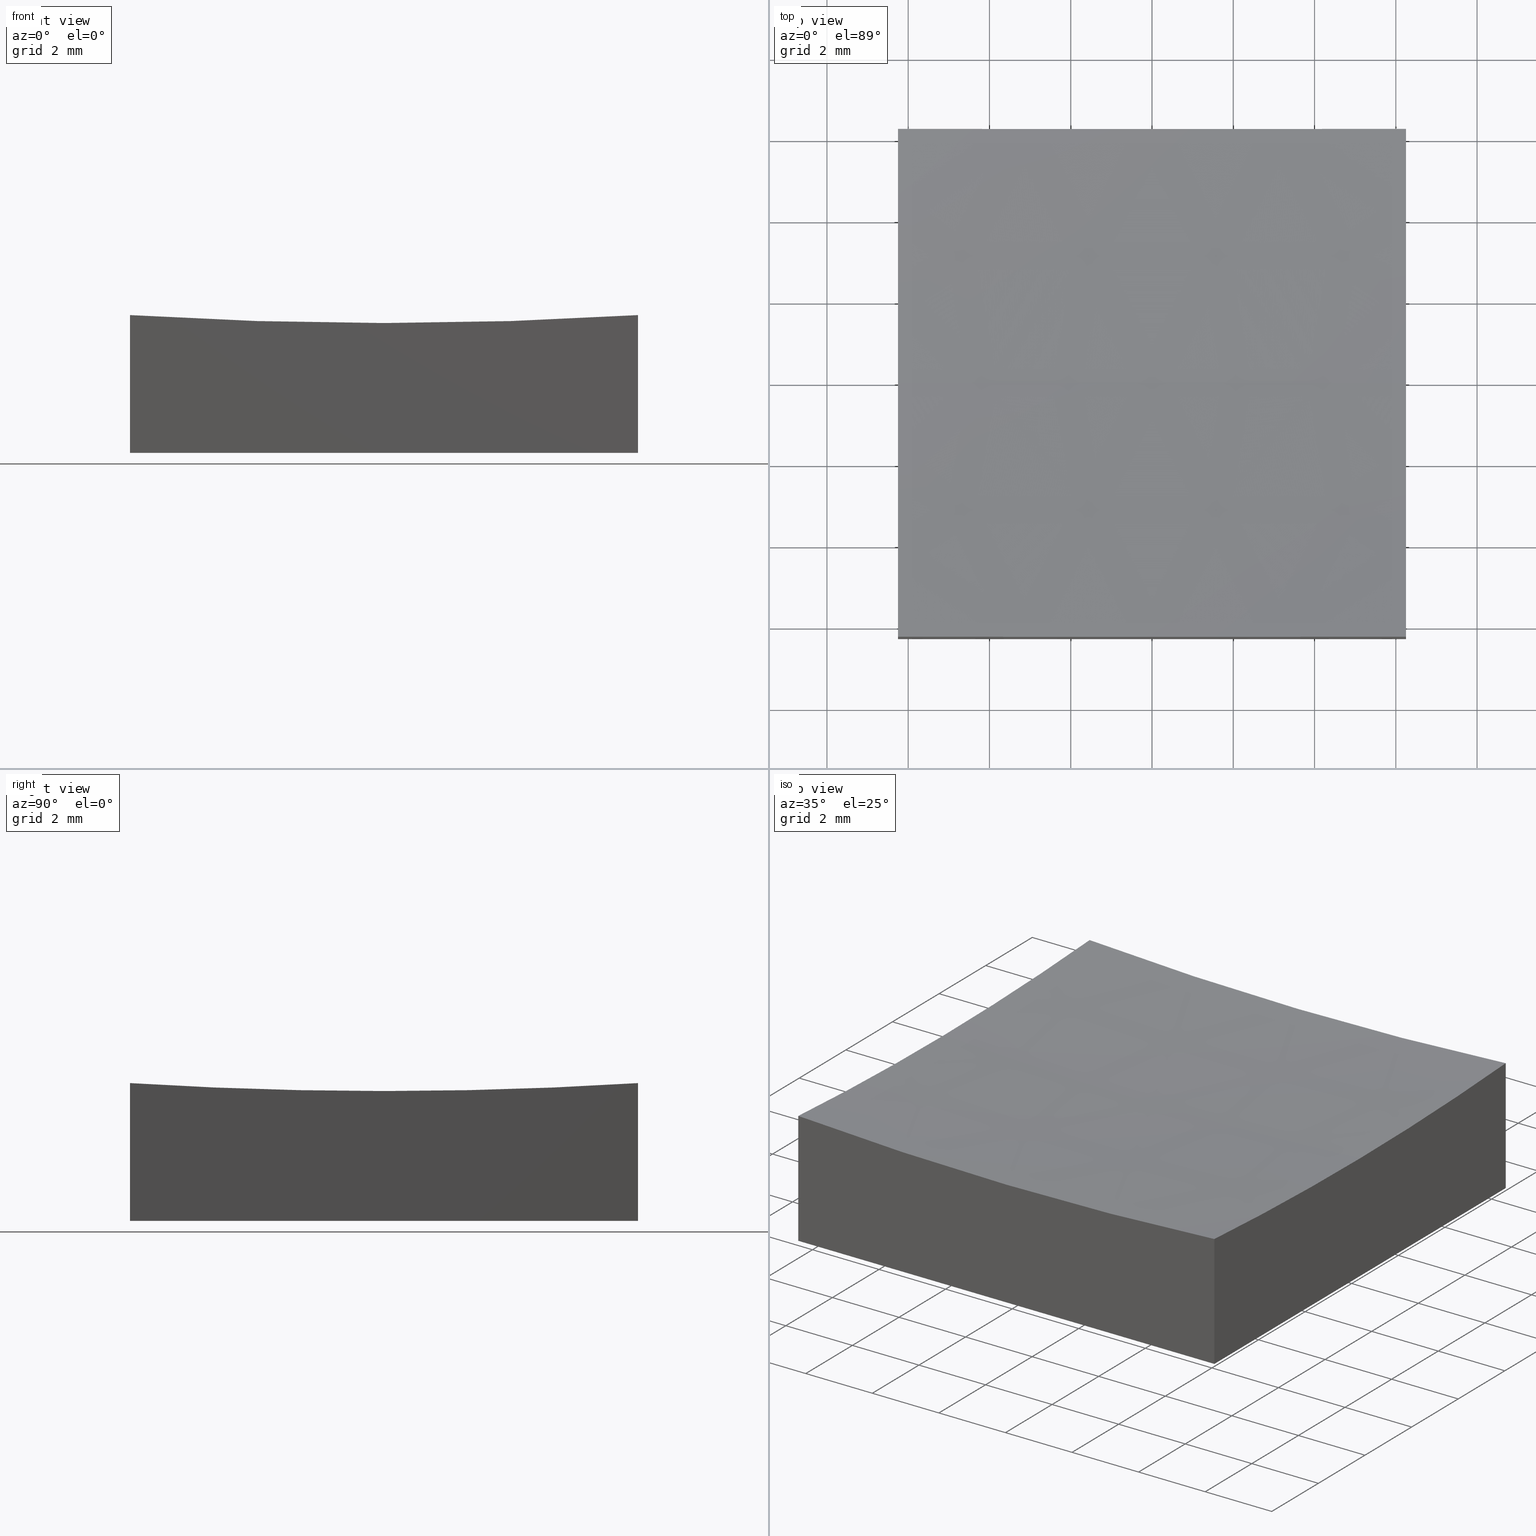
[diagram: canonical four-view strip — front | top / right | iso, engineering-drawing reading convention]
A machine part, canonical four-view strip (front | top / right | iso — engineering-drawing reading convention). The complete STEP part file that produces these views, byte-faithful:
ISO-10303-21;
HEADER;
FILE_DESCRIPTION (( 'STEP AP214' ),
    '1' );
FILE_NAME ('270018.STEP',
    '2020-06-01T09:02:03',
    ( '' ),
    ( '' ),
    'SwSTEP 2.0',
    'SolidWorks 2019',
    '' );
FILE_SCHEMA (( 'AUTOMOTIVE_DESIGN' ));
ENDSEC;

DATA;
#1 = DIRECTION ( 'NONE',  ( 0.0000000000000000000, -1.000000000000000000, -0.0000000000000000000 ) ) ;
#2 = ORIENTED_EDGE ( 'NONE', *, *, #203, .T. ) ;
#3 = ORIENTED_EDGE ( 'NONE', *, *, #249, .T. ) ;
#4 = CLOSED_SHELL ( 'NONE', ( #228, #18, #222, #123, #190, #88, #143 ) ) ;
#5 = PRODUCT_CONTEXT ( 'NONE', #141, 'mechanical' ) ;
#6 = EDGE_LOOP ( 'NONE', ( #231, #62, #209, #244 ) ) ;
#7 = CARTESIAN_POINT ( 'NONE',  ( -6.250000000000000000, 6.250000000000000888, 10.00000000000000000 ) ) ;
#8 = CARTESIAN_POINT ( 'NONE',  ( 6.250000000000000000, 6.250000000000000888, 0.0000000000000000000 ) ) ;
#9 = DIRECTION ( 'NONE',  ( 0.0000000000000000000, 1.000000000000000000, 0.0000000000000000000 ) ) ;
#10 = VECTOR ( 'NONE', #136, 1000.000000000000000 ) ;
#11 = DIRECTION ( 'NONE',  ( 0.0000000000000000000, 0.0000000000000000000, 1.000000000000000000 ) ) ;
#12 = SURFACE_STYLE_FILL_AREA ( #107 ) ;
#13 = ORIENTED_EDGE ( 'NONE', *, *, #39, .F. ) ;
#14 =( NAMED_UNIT ( * ) PLANE_ANGLE_UNIT ( ) SI_UNIT ( $, .RADIAN. ) );
#15 = DIRECTION ( 'NONE',  ( 0.0000000000000000000, 1.000000000000000000, 0.0000000000000000000 ) ) ;
#16 = PRODUCT ( '270018', '270018', '', ( #5 ) ) ;
#17 = ORIENTED_EDGE ( 'NONE', *, *, #163, .T. ) ;
#18 = ADVANCED_FACE ( 'NONE', ( #118 ), #195, .T. ) ;
#19 = EDGE_LOOP ( 'NONE', ( #77, #157, #83, #179, #135 ) ) ;
#20 = VERTEX_POINT ( 'NONE', #137 ) ;
#21 = ORIENTED_EDGE ( 'NONE', *, *, #101, .F. ) ;
#22 = ORIENTED_EDGE ( 'NONE', *, *, #101, .T. ) ;
#23 = CARTESIAN_POINT ( 'NONE',  ( 6.250000000000000000, 6.250000000000000888, 3.391390934317326078 ) ) ;
#24 = CARTESIAN_POINT ( 'NONE',  ( 6.250000000000000000, -6.250000000000000888, 3.391390934317326078 ) ) ;
#25 = PRODUCT_DEFINITION_CONTEXT ( 'detailed design', #33, 'design' ) ;
#26 = AXIS2_PLACEMENT_3D ( 'NONE', #145, #192, #29 ) ;
#27 = EDGE_CURVE ( 'NONE', #196, #20, #41, .T. ) ;
#28 = CARTESIAN_POINT ( 'NONE',  ( -6.250000000000000000, 6.250000000000000888, 0.0000000000000000000 ) ) ;
#29 = DIRECTION ( 'NONE',  ( 0.0000000000000000000, -0.0000000000000000000, 1.000000000000000000 ) ) ;
#30 = DIRECTION ( 'NONE',  ( 1.224646799147353207E-16, 1.000000000000000000, -1.494917516854725104E-32 ) ) ;
#31 = SPHERICAL_SURFACE ( 'NONE', #171, 100.0000000000000000 ) ;
#32 = APPLICATION_PROTOCOL_DEFINITION ( 'draft international standard', 'automotive_design', 1998, #33 ) ;
#33 = APPLICATION_CONTEXT ( 'automotive_design' ) ;
#34 = AXIS2_PLACEMENT_3D ( 'NONE', #188, #11, #89 ) ;
#35 = EDGE_CURVE ( 'NONE', #98, #159, #153, .T. ) ;
#36 = ORIENTED_EDGE ( 'NONE', *, *, #151, .T. ) ;
#37 = VERTEX_POINT ( 'NONE', #38 ) ;
#38 = CARTESIAN_POINT ( 'NONE',  ( 6.250000000000000000, -6.250000000000000888, 0.0000000000000000000 ) ) ;
#39 = EDGE_CURVE ( 'NONE', #159, #196, #150, .T. ) ;
#40 = VERTEX_POINT ( 'NONE', #114 ) ;
#41 = LINE ( 'NONE', #194, #10 ) ;
#42 = EDGE_CURVE ( 'NONE', #40, #37, #183, .T. ) ;
#43 = SURFACE_SIDE_STYLE ('',( #48 ) ) ;
#44 = COLOUR_RGB ( '',1.000000000000000000, 1.000000000000000000, 1.000000000000000000 ) ;
#45 = LINE ( 'NONE', #8, #246 ) ;
#46 =( NAMED_UNIT ( * ) SI_UNIT ( $, .STERADIAN. ) SOLID_ANGLE_UNIT ( ) );
#47 = LINE ( 'NONE', #28, #146 ) ;
#48 = SURFACE_STYLE_FILL_AREA ( #237 ) ;
#49 = PLANE ( 'NONE',  #26 ) ;
#50 = MECHANICAL_DESIGN_GEOMETRIC_PRESENTATION_REPRESENTATION (  '', ( #76 ), #60 ) ;
#51 = FACE_OUTER_BOUND ( 'NONE', #132, .T. ) ;
#52 = DIRECTION ( 'NONE',  ( 1.000000000000000000, 0.0000000000000000000, -0.0000000000000000000 ) ) ;
#53 = PRESENTATION_LAYER_ASSIGNMENT (  '', '', ( #76 ) ) ;
#54 = CIRCLE ( 'NONE', #199, 99.80449639169570730 ) ;
#55 = ORIENTED_EDGE ( 'NONE', *, *, #35, .F. ) ;
#56 = ORIENTED_EDGE ( 'NONE', *, *, #249, .F. ) ;
#57 = DIRECTION ( 'NONE',  ( 0.0000000000000000000, 0.0000000000000000000, -1.000000000000000000 ) ) ;
#58 = UNCERTAINTY_MEASURE_WITH_UNIT (LENGTH_MEASURE( 1.000000000000000082E-05 ), #65, 'distance_accuracy_value', 'NONE');
#59 = VERTEX_POINT ( 'NONE', #24 ) ;
#60 =( GEOMETRIC_REPRESENTATION_CONTEXT ( 3 ) GLOBAL_UNCERTAINTY_ASSIGNED_CONTEXT ( ( #236 ) ) GLOBAL_UNIT_ASSIGNED_CONTEXT ( ( #219, #14, #245 ) ) REPRESENTATION_CONTEXT ( 'NONE', 'WORKASPACE' ) );
#61 = CARTESIAN_POINT ( 'NONE',  ( -6.250000000000000000, 6.250000000000000888, 0.0000000000000000000 ) ) ;
#62 = ORIENTED_EDGE ( 'NONE', *, *, #27, .T. ) ;
#63 = CARTESIAN_POINT ( 'NONE',  ( -6.250000000000000000, -6.250000000000000888, 10.00000000000000000 ) ) ;
#64 = LINE ( 'NONE', #189, #156 ) ;
#65 =( LENGTH_UNIT ( ) NAMED_UNIT ( * ) SI_UNIT ( .MILLI., .METRE. ) );
#66 = CARTESIAN_POINT ( 'NONE',  ( 6.530168136435014218E-15, 0.0000000000000000000, 3.000000000000002665 ) ) ;
#67 = VECTOR ( 'NONE', #198, 1000.000000000000000 ) ;
#68 = CARTESIAN_POINT ( 'NONE',  ( 6.250000000000000000, 0.0000000000000000000, 3.195503608304305132 ) ) ;
#69 = CARTESIAN_POINT ( 'NONE',  ( -6.250000000000000000, -6.250000000000000888, 3.391390934317326078 ) ) ;
#70 = CARTESIAN_POINT ( 'NONE',  ( -6.250000000000000000, 0.0000000000000000000, 103.0000000000000142 ) ) ;
#71 = AXIS2_PLACEMENT_3D ( 'NONE', #230, #95, #252 ) ;
#72 = CARTESIAN_POINT ( 'NONE',  ( 6.250000000000000000, 6.250000000000000888, 10.00000000000000000 ) ) ;
#73 = EDGE_CURVE ( 'NONE', #196, #99, #205, .T. ) ;
#74 = AXIS2_PLACEMENT_3D ( 'NONE', #164, #238, #241 ) ;
#75 =( GEOMETRIC_REPRESENTATION_CONTEXT ( 3 ) GLOBAL_UNCERTAINTY_ASSIGNED_CONTEXT ( ( #133 ) ) GLOBAL_UNIT_ASSIGNED_CONTEXT ( ( #216, #242, #197 ) ) REPRESENTATION_CONTEXT ( 'NONE', 'WORKASPACE' ) );
#76 = STYLED_ITEM ( 'NONE', ( #214 ), #176 ) ;
#77 = ORIENTED_EDGE ( 'NONE', *, *, #163, .F. ) ;
#78 = EDGE_CURVE ( 'NONE', #20, #37, #45, .T. ) ;
#79 = ORIENTED_EDGE ( 'NONE', *, *, #203, .F. ) ;
#80 = CARTESIAN_POINT ( 'NONE',  ( -6.250000000000000000, -6.250000000000000888, 0.0000000000000000000 ) ) ;
#81 =( GEOMETRIC_REPRESENTATION_CONTEXT ( 3 ) GLOBAL_UNCERTAINTY_ASSIGNED_CONTEXT ( ( #58 ) ) GLOBAL_UNIT_ASSIGNED_CONTEXT ( ( #65, #165, #46 ) ) REPRESENTATION_CONTEXT ( 'NONE', 'WORKASPACE' ) );
#82 = DIRECTION ( 'NONE',  ( -0.0000000000000000000, -0.0000000000000000000, -1.000000000000000000 ) ) ;
#83 = ORIENTED_EDGE ( 'NONE', *, *, #39, .T. ) ;
#84 = CARTESIAN_POINT ( 'NONE',  ( 0.0000000000000000000, 0.0000000000000000000, 0.0000000000000000000 ) ) ;
#85 = DIRECTION ( 'NONE',  ( 0.0000000000000000000, 1.000000000000000000, 0.0000000000000000000 ) ) ;
#86 = DIRECTION ( 'NONE',  ( -0.0000000000000000000, -0.0000000000000000000, -1.000000000000000000 ) ) ;
#87 = VECTOR ( 'NONE', #82, 1000.000000000000000 ) ;
#88 = ADVANCED_FACE ( 'NONE', ( #51 ), #142, .T. ) ;
#89 = DIRECTION ( 'NONE',  ( 1.000000000000000000, 0.0000000000000000000, 0.0000000000000000000 ) ) ;
#90 = SURFACE_SIDE_STYLE ('',( #12 ) ) ;
#91 = DIRECTION ( 'NONE',  ( -1.000000000000000000, 1.224646799147353207E-16, 0.0000000000000000000 ) ) ;
#92 = AXIS2_PLACEMENT_3D ( 'NONE', #139, #181, #184 ) ;
#93 = PRODUCT_DEFINITION ( 'δ֪', '', #154, #25 ) ;
#94 = VECTOR ( 'NONE', #201, 1000.000000000000000 ) ;
#95 = DIRECTION ( 'NONE',  ( 0.0000000000000000000, 1.000000000000000000, 0.0000000000000000000 ) ) ;
#96 = EDGE_CURVE ( 'NONE', #59, #159, #223, .T. ) ;
#97 = AXIS2_PLACEMENT_3D ( 'NONE', #72, #52, #247 ) ;
#98 = VERTEX_POINT ( 'NONE', #66 ) ;
#99 = VERTEX_POINT ( 'NONE', #167 ) ;
#100 = ORIENTED_EDGE ( 'NONE', *, *, #168, .T. ) ;
#101 = EDGE_CURVE ( 'NONE', #226, #173, #210, .T. ) ;
#102 = ORIENTED_EDGE ( 'NONE', *, *, #96, .T. ) ;
#103 = AXIS2_PLACEMENT_3D ( 'NONE', #185, #9, #166 ) ;
#104 = PLANE ( 'NONE',  #113 ) ;
#105 = DIRECTION ( 'NONE',  ( 0.0000000000000000000, -1.000000000000000000, 0.0000000000000000000 ) ) ;
#106 = CARTESIAN_POINT ( 'NONE',  ( -6.250000000000000000, 0.0000000000000000000, 103.0000000000000142 ) ) ;
#107 = FILL_AREA_STYLE ('',( #125 ) ) ;
#108 = LINE ( 'NONE', #186, #240 ) ;
#109 = DIRECTION ( 'NONE',  ( 1.000000000000000000, 0.0000000000000000000, -1.387778780781445676E-16 ) ) ;
#110 = PRODUCT_DEFINITION_SHAPE ( 'NONE', 'NONE',  #93 ) ;
#111 = EDGE_LOOP ( 'NONE', ( #55, #17, #21, #56, #102 ) ) ;
#112 = ORIENTED_EDGE ( 'NONE', *, *, #225, .F. ) ;
#113 = AXIS2_PLACEMENT_3D ( 'NONE', #7, #191, #148 ) ;
#114 = CARTESIAN_POINT ( 'NONE',  ( -6.250000000000000000, -6.250000000000000888, 0.0000000000000000000 ) ) ;
#115 = CARTESIAN_POINT ( 'NONE',  ( 6.250000000000000000, 0.0000000000000000000, 103.0000000000000142 ) ) ;
#116 = PRODUCT_RELATED_PRODUCT_CATEGORY ( 'part', '', ( #16 ) ) ;
#117 = FACE_OUTER_BOUND ( 'NONE', #126, .T. ) ;
#118 = FACE_OUTER_BOUND ( 'NONE', #6, .T. ) ;
#119 = SPHERICAL_SURFACE ( 'NONE', #130, 100.0000000000000000 ) ;
#120 = CARTESIAN_POINT ( 'NONE',  ( 1.261386203121774235E-14, 0.0000000000000000000, 103.0000000000000142 ) ) ;
#121 = AXIS2_PLACEMENT_3D ( 'NONE', #120, #30, #91 ) ;
#122 = SURFACE_STYLE_USAGE ( .BOTH. , #43 ) ;
#123 = ADVANCED_FACE ( 'NONE', ( #202 ), #49, .F. ) ;
#124 = CARTESIAN_POINT ( 'NONE',  ( 6.250000000000000000, -6.250000000000000888, 10.00000000000000000 ) ) ;
#125 = FILL_AREA_STYLE_COLOUR ( '', #44 ) ;
#126 = EDGE_LOOP ( 'NONE', ( #79, #22, #36, #100, #162 ) ) ;
#127 = CARTESIAN_POINT ( 'NONE',  ( 1.261386203121774235E-14, 0.0000000000000000000, 103.0000000000000142 ) ) ;
#128 = SHAPE_DEFINITION_REPRESENTATION ( #110, #155 ) ;
#129 = DIRECTION ( 'NONE',  ( -1.000000000000000000, 0.0000000000000000000, -0.0000000000000000000 ) ) ;
#130 = AXIS2_PLACEMENT_3D ( 'NONE', #200, #85, #232 ) ;
#131 = EDGE_CURVE ( 'NONE', #59, #37, #215, .T. ) ;
#132 = EDGE_LOOP ( 'NONE', ( #208, #177, #211, #112 ) ) ;
#133 = UNCERTAINTY_MEASURE_WITH_UNIT (LENGTH_MEASURE( 1.000000000000000082E-05 ), #216, 'distance_accuracy_value', 'NONE');
#134 = AXIS2_PLACEMENT_3D ( 'NONE', #84, #235, #129 ) ;
#135 = ORIENTED_EDGE ( 'NONE', *, *, #151, .F. ) ;
#136 = DIRECTION ( 'NONE',  ( -0.0000000000000000000, -0.0000000000000000000, -1.000000000000000000 ) ) ;
#137 = CARTESIAN_POINT ( 'NONE',  ( 6.250000000000000000, 6.250000000000000888, 0.0000000000000000000 ) ) ;
#138 = ORIENTED_EDGE ( 'NONE', *, *, #131, .T. ) ;
#139 = CARTESIAN_POINT ( 'NONE',  ( 1.261386203121774235E-14, -6.250000000000000888, 103.0000000000000142 ) ) ;
#140 = ORIENTED_EDGE ( 'NONE', *, *, #131, .F. ) ;
#141 = APPLICATION_CONTEXT ( 'automotive_design' ) ;
#142 = PLANE ( 'NONE',  #134 ) ;
#143 = ADVANCED_FACE ( 'NONE', ( #204 ), #31, .F. ) ;
#144 = FACE_OUTER_BOUND ( 'NONE', #111, .T. ) ;
#145 = CARTESIAN_POINT ( 'NONE',  ( -6.250000000000000000, -6.250000000000000888, 10.00000000000000000 ) ) ;
#146 = VECTOR ( 'NONE', #170, 1000.000000000000000 ) ;
#147 = CARTESIAN_POINT ( 'NONE',  ( -6.250000000000000000, 7.654042494670957606E-16, 3.195503608304305132 ) ) ;
#148 = DIRECTION ( 'NONE',  ( -0.0000000000000000000, 0.0000000000000000000, -1.000000000000000000 ) ) ;
#149 = DIRECTION ( 'NONE',  ( 1.000000000000000000, 0.0000000000000000000, -0.0000000000000000000 ) ) ;
#150 = CIRCLE ( 'NONE', #206, 99.80449639169570730 ) ;
#151 = EDGE_CURVE ( 'NONE', #173, #99, #54, .T. ) ;
#152 = PLANE ( 'NONE',  #97 ) ;
#153 = CIRCLE ( 'NONE', #175, 100.0000000000000000 ) ;
#154 = PRODUCT_DEFINITION_FORMATION_WITH_SPECIFIED_SOURCE ( '�κ�', '', #16, .NOT_KNOWN. ) ;
#155 = ADVANCED_BREP_SHAPE_REPRESENTATION ( '270018', ( #176, #34 ), #75 ) ;
#156 = VECTOR ( 'NONE', #86, 1000.000000000000000 ) ;
#157 = ORIENTED_EDGE ( 'NONE', *, *, #35, .T. ) ;
#158 = ORIENTED_EDGE ( 'NONE', *, *, #27, .F. ) ;
#159 = VERTEX_POINT ( 'NONE', #68 ) ;
#160 = PRESENTATION_STYLE_ASSIGNMENT (( #122 ) ) ;
#161 = DIRECTION ( 'NONE',  ( 0.0000000000000000000, 0.0000000000000000000, -1.000000000000000000 ) ) ;
#162 = ORIENTED_EDGE ( 'NONE', *, *, #225, .T. ) ;
#163 = EDGE_CURVE ( 'NONE', #98, #173, #227, .T. ) ;
#164 = CARTESIAN_POINT ( 'NONE',  ( 6.250000000000000000, 0.0000000000000000000, 103.0000000000000142 ) ) ;
#165 =( NAMED_UNIT ( * ) PLANE_ANGLE_UNIT ( ) SI_UNIT ( $, .RADIAN. ) );
#166 = DIRECTION ( 'NONE',  ( 0.0000000000000000000, 0.0000000000000000000, 1.000000000000000000 ) ) ;
#167 = CARTESIAN_POINT ( 'NONE',  ( -6.250000000000000000, 6.250000000000000888, 3.391390934317326078 ) ) ;
#168 = EDGE_CURVE ( 'NONE', #99, #229, #64, .T. ) ;
#169 = DIRECTION ( 'NONE',  ( 0.0000000000000000000, 0.0000000000000000000, -1.000000000000000000 ) ) ;
#170 = DIRECTION ( 'NONE',  ( 1.000000000000000000, 0.0000000000000000000, 0.0000000000000000000 ) ) ;
#171 = AXIS2_PLACEMENT_3D ( 'NONE', #127, #15, #109 ) ;
#172 = CIRCLE ( 'NONE', #92, 99.80449639169572151 ) ;
#173 = VERTEX_POINT ( 'NONE', #147 ) ;
#174 = CARTESIAN_POINT ( 'NONE',  ( 1.261386203121774235E-14, 0.0000000000000000000, 103.0000000000000142 ) ) ;
#175 = AXIS2_PLACEMENT_3D ( 'NONE', #174, #1, #57 ) ;
#176 = MANIFOLD_SOLID_BREP ( '�г�-��ת2', #4 ) ;
#177 = ORIENTED_EDGE ( 'NONE', *, *, #78, .T. ) ;
#178 = EDGE_CURVE ( 'NONE', #229, #20, #47, .T. ) ;
#179 = ORIENTED_EDGE ( 'NONE', *, *, #73, .T. ) ;
#180 = DIRECTION ( 'NONE',  ( 1.000000000000000000, 0.0000000000000000000, -0.0000000000000000000 ) ) ;
#181 = DIRECTION ( 'NONE',  ( 0.0000000000000000000, 1.000000000000000000, 0.0000000000000000000 ) ) ;
#182 = PRESENTATION_LAYER_ASSIGNMENT (  '', '', ( #248 ) ) ;
#183 = LINE ( 'NONE', #80, #67 ) ;
#184 = DIRECTION ( 'NONE',  ( 0.0000000000000000000, 0.0000000000000000000, 1.000000000000000000 ) ) ;
#185 = CARTESIAN_POINT ( 'NONE',  ( 1.261386203121774235E-14, 6.250000000000000888, 103.0000000000000142 ) ) ;
#186 = CARTESIAN_POINT ( 'NONE',  ( -6.250000000000000000, 6.250000000000000888, 0.0000000000000000000 ) ) ;
#187 = DIRECTION ( 'NONE',  ( 1.000000000000000000, 0.0000000000000000000, -0.0000000000000000000 ) ) ;
#188 = CARTESIAN_POINT ( 'NONE',  ( 0.0000000000000000000, 0.0000000000000000000, 0.0000000000000000000 ) ) ;
#189 = CARTESIAN_POINT ( 'NONE',  ( -6.250000000000000000, 6.250000000000000888, 10.00000000000000000 ) ) ;
#190 = ADVANCED_FACE ( 'NONE', ( #221 ), #152, .T. ) ;
#191 = DIRECTION ( 'NONE',  ( 1.000000000000000000, 0.0000000000000000000, -0.0000000000000000000 ) ) ;
#192 = DIRECTION ( 'NONE',  ( 0.0000000000000000000, 1.000000000000000000, 0.0000000000000000000 ) ) ;
#193 = EDGE_LOOP ( 'NONE', ( #140, #3, #2, #251 ) ) ;
#194 = CARTESIAN_POINT ( 'NONE',  ( 6.250000000000000000, 6.250000000000000888, 10.00000000000000000 ) ) ;
#195 = PLANE ( 'NONE',  #71 ) ;
#196 = VERTEX_POINT ( 'NONE', #23 ) ;
#197 =( NAMED_UNIT ( * ) SI_UNIT ( $, .STERADIAN. ) SOLID_ANGLE_UNIT ( ) );
#198 = DIRECTION ( 'NONE',  ( 1.000000000000000000, 0.0000000000000000000, 0.0000000000000000000 ) ) ;
#199 = AXIS2_PLACEMENT_3D ( 'NONE', #106, #187, #169 ) ;
#200 = CARTESIAN_POINT ( 'NONE',  ( 1.261386203121774235E-14, 0.0000000000000000000, 103.0000000000000142 ) ) ;
#201 = DIRECTION ( 'NONE',  ( -0.0000000000000000000, -0.0000000000000000000, -1.000000000000000000 ) ) ;
#202 = FACE_OUTER_BOUND ( 'NONE', #193, .T. ) ;
#203 = EDGE_CURVE ( 'NONE', #226, #40, #239, .T. ) ;
#204 = FACE_OUTER_BOUND ( 'NONE', #19, .T. ) ;
#205 = CIRCLE ( 'NONE', #103, 99.80449639169572151 ) ;
#206 = AXIS2_PLACEMENT_3D ( 'NONE', #115, #180, #161 ) ;
#207 = ORIENTED_EDGE ( 'NONE', *, *, #78, .F. ) ;
#208 = ORIENTED_EDGE ( 'NONE', *, *, #178, .T. ) ;
#209 = ORIENTED_EDGE ( 'NONE', *, *, #178, .F. ) ;
#210 = CIRCLE ( 'NONE', #250, 99.80449639169570730 ) ;
#211 = ORIENTED_EDGE ( 'NONE', *, *, #42, .F. ) ;
#212 = EDGE_LOOP ( 'NONE', ( #233, #138, #207, #158, #13 ) ) ;
#213 = FILL_AREA_STYLE_COLOUR ( '', #224 ) ;
#214 = PRESENTATION_STYLE_ASSIGNMENT (( #243 ) ) ;
#215 = LINE ( 'NONE', #124, #94 ) ;
#216 =( LENGTH_UNIT ( ) NAMED_UNIT ( * ) SI_UNIT ( .MILLI., .METRE. ) );
#217 = DIRECTION ( 'NONE',  ( 0.0000000000000000000, 0.0000000000000000000, -1.000000000000000000 ) ) ;
#218 = APPLICATION_PROTOCOL_DEFINITION ( 'draft international standard', 'automotive_design', 1998, #141 ) ;
#219 =( LENGTH_UNIT ( ) NAMED_UNIT ( * ) SI_UNIT ( .MILLI., .METRE. ) );
#220 = MECHANICAL_DESIGN_GEOMETRIC_PRESENTATION_REPRESENTATION (  '', ( #248 ), #81 ) ;
#221 = FACE_OUTER_BOUND ( 'NONE', #212, .T. ) ;
#222 = ADVANCED_FACE ( 'NONE', ( #117 ), #104, .F. ) ;
#223 = CIRCLE ( 'NONE', #74, 99.80449639169570730 ) ;
#224 = COLOUR_RGB ( '',1.000000000000000000, 1.000000000000000000, 1.000000000000000000 ) ;
#225 = EDGE_CURVE ( 'NONE', #229, #40, #108, .T. ) ;
#226 = VERTEX_POINT ( 'NONE', #69 ) ;
#227 = CIRCLE ( 'NONE', #121, 100.0000000000000000 ) ;
#228 = ADVANCED_FACE ( 'NONE', ( #144 ), #119, .F. ) ;
#229 = VERTEX_POINT ( 'NONE', #61 ) ;
#230 = CARTESIAN_POINT ( 'NONE',  ( -6.250000000000000000, 6.250000000000000888, 10.00000000000000000 ) ) ;
#231 = ORIENTED_EDGE ( 'NONE', *, *, #73, .F. ) ;
#232 = DIRECTION ( 'NONE',  ( 1.000000000000000000, 0.0000000000000000000, -1.387778780781445676E-16 ) ) ;
#233 = ORIENTED_EDGE ( 'NONE', *, *, #96, .F. ) ;
#234 = DIRECTION ( 'NONE',  ( 0.0000000000000000000, -1.000000000000000000, 0.0000000000000000000 ) ) ;
#235 = DIRECTION ( 'NONE',  ( 0.0000000000000000000, 0.0000000000000000000, -1.000000000000000000 ) ) ;
#236 = UNCERTAINTY_MEASURE_WITH_UNIT (LENGTH_MEASURE( 1.000000000000000082E-05 ), #219, 'distance_accuracy_value', 'NONE');
#237 = FILL_AREA_STYLE ('',( #213 ) ) ;
#238 = DIRECTION ( 'NONE',  ( 1.000000000000000000, 0.0000000000000000000, -0.0000000000000000000 ) ) ;
#239 = LINE ( 'NONE', #63, #87 ) ;
#240 = VECTOR ( 'NONE', #234, 1000.000000000000000 ) ;
#241 = DIRECTION ( 'NONE',  ( 0.0000000000000000000, 0.0000000000000000000, -1.000000000000000000 ) ) ;
#242 =( NAMED_UNIT ( * ) PLANE_ANGLE_UNIT ( ) SI_UNIT ( $, .RADIAN. ) );
#243 = SURFACE_STYLE_USAGE ( .BOTH. , #90 ) ;
#244 = ORIENTED_EDGE ( 'NONE', *, *, #168, .F. ) ;
#245 =( NAMED_UNIT ( * ) SI_UNIT ( $, .STERADIAN. ) SOLID_ANGLE_UNIT ( ) );
#246 = VECTOR ( 'NONE', #105, 1000.000000000000000 ) ;
#247 = DIRECTION ( 'NONE',  ( -0.0000000000000000000, 0.0000000000000000000, -1.000000000000000000 ) ) ;
#248 = STYLED_ITEM ( 'NONE', ( #160 ), #155 ) ;
#249 = EDGE_CURVE ( 'NONE', #59, #226, #172, .T. ) ;
#250 = AXIS2_PLACEMENT_3D ( 'NONE', #70, #149, #217 ) ;
#251 = ORIENTED_EDGE ( 'NONE', *, *, #42, .T. ) ;
#252 = DIRECTION ( 'NONE',  ( 0.0000000000000000000, -0.0000000000000000000, 1.000000000000000000 ) ) ;
ENDSEC;
END-ISO-10303-21;
